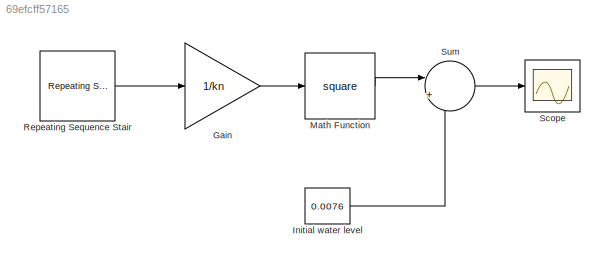
MODEL slx_69efcff57165
KIND model
CONFIG AbsTol = auto
CONFIG EnableMultiTasking = off
CONFIG FixedStep = auto
CONFIG MaxStep = auto
CONFIG MinStep = auto
CONFIG RelTol = 1e-3
CONFIG SampleTimeConstraint = Unconstrained
CONFIG SolverName = VariableStepAuto
CONFIG StartTime = 0.0
CONFIG StopTime = 10.0
BLOCK [Gain] Gain
  Gain = 1/kn
BLOCK [Constant] Initial water level
  Value = 0.0076
BLOCK [Math] Math Function
  Operator = square
  Ports = [1, 1]
BLOCK [Reference] Repeating Sequence Stair  REF=simulink/Sources/Repeating
Sequence
Stair
  Ports = [0, 1]
  SourceBlock = simulink/Sources/Repeating\nSequence\nStair
  SourceProductBaseCode = SL
  SourceType = Repeating Sequence Stair
BLOCK [Scope] Scope
  Floating = off
  NumInputPorts = 1
  Ports = [1]
  ScopeSpecificationString = Simulink.scopes.TimeScopeBlockCfg('CurrentConfiguration', extmgr.ConfigurationSet(extmgr.Configuration('Core','General UI',true),extmgr.Configuration('Core','Source UI',true),extmgr.Configuration('Sources','WiredSimulink',true),extmgr.Configuration('Visuals','Time Domain',true,'SerializedDisplays',{struct('MinYLimReal','0.0066','MaxYLimReal','0.0086','YLabelReal','','MinYLimMag','0.0066','MaxYLimM...<+1313ch>
BLOCK [Sum] Sum
  Inputs = |++
  Ports = [2, 1]
LINE Gain:1 -> Math Function:1
LINE Initial water level:1 -> Sum:2
LINE Math Function:1 -> Sum:1
LINE Repeating Sequence Stair:1 -> Gain:1
LINE Sum:1 -> Scope:1
